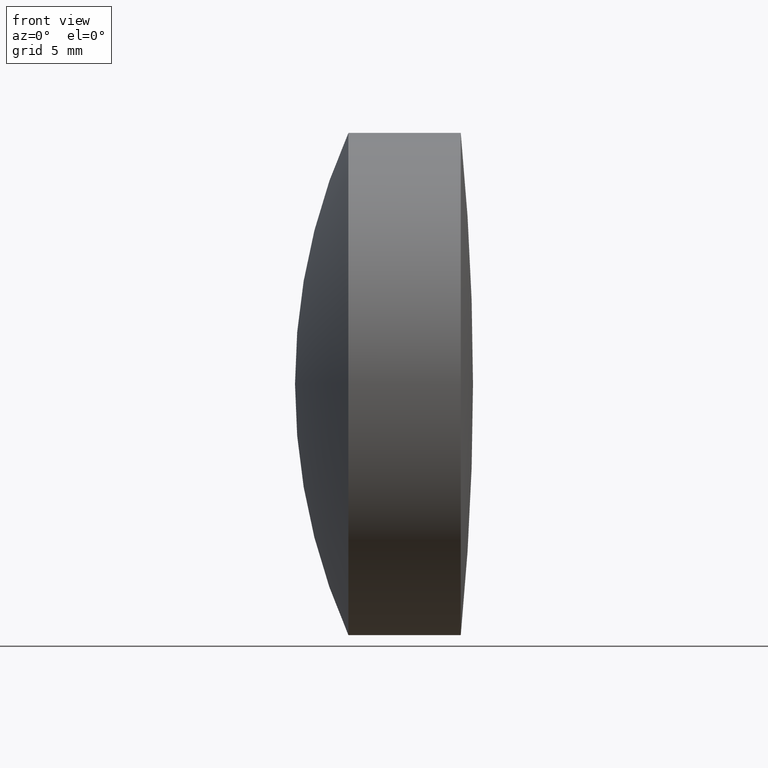
[diagram: clean part render]
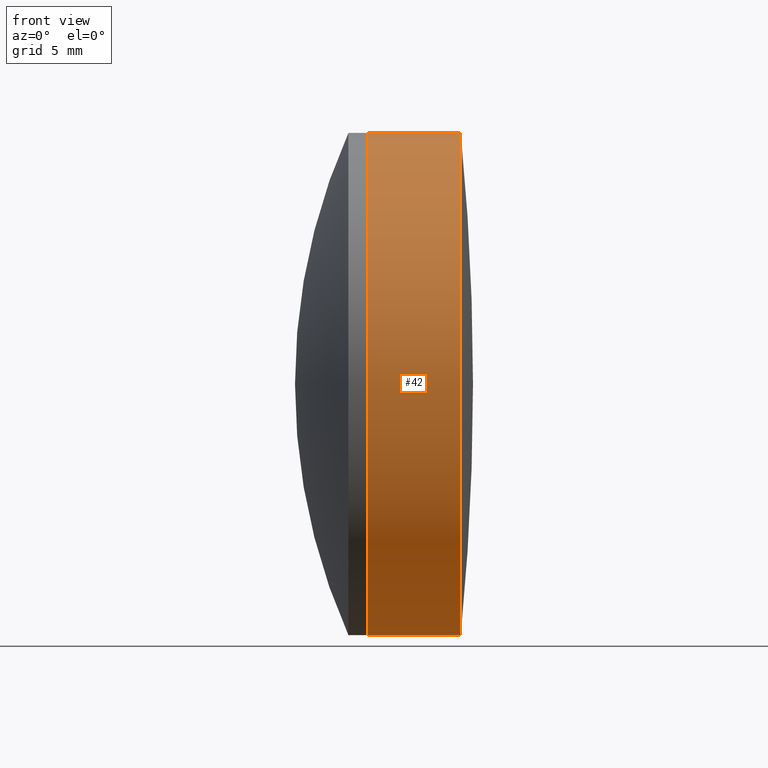
[diagram: same view with one face highlighted and labeled with its STEP entity id]
A machine part, front view. The second image highlights one B-rep face of the part: STEP entity #42.
In plain terms, the highlighted cylindrical surface (partial cylindrical patch) has radius 12.7 mm, axis along (-1, -0, -0).
Its self-contained STEP definition (entity closure, byte-faithful):
#3 = FACE_OUTER_BOUND ( 'NONE', #335, .T. ) ;
#6 = CARTESIAN_POINT ( 'NONE',  ( 233.6683955093282300, 0.0000000000000000000, 12.70000000000001700 ) ) ;
#12 = CIRCLE ( 'NONE', #99, 12.70000000000001700 ) ;
#27 = EDGE_CURVE ( 'NONE', #146, #310, #59, .T. ) ;
#29 = CARTESIAN_POINT ( 'NONE',  ( 238.3768828869102400, 0.0000000000000000000, 12.70000000000002100 ) ) ;
#38 = ORIENTED_EDGE ( 'NONE', *, *, #27, .T. ) ;
#39 = LINE ( 'NONE', #191, #87 ) ;
#42 = ADVANCED_FACE ( 'NONE', ( #3 ), #189, .T. ) ;
#47 = DIRECTION ( 'NONE',  ( -1.000000000000000000, -0.0000000000000000000, -0.0000000000000000000 ) ) ;
#59 = CIRCLE ( 'NONE', #255, 12.70000000000002100 ) ;
#64 = AXIS2_PLACEMENT_3D ( 'NONE', #317, #249, #188 ) ;
#73 = VECTOR ( 'NONE', #167, 1000.000000000000000 ) ;
#80 = ORIENTED_EDGE ( 'NONE', *, *, #269, .F. ) ;
#87 = VECTOR ( 'NONE', #228, 1000.000000000000000 ) ;
#99 = AXIS2_PLACEMENT_3D ( 'NONE', #261, #47, #102 ) ;
#102 = DIRECTION ( 'NONE',  ( 0.0000000000000000000, 0.0000000000000000000, 1.000000000000000000 ) ) ;
#107 = EDGE_CURVE ( 'NONE', #146, #166, #39, .T. ) ;
#113 = LINE ( 'NONE', #215, #73 ) ;
#121 = VERTEX_POINT ( 'NONE', #6 ) ;
#131 = EDGE_CURVE ( 'NONE', #310, #121, #113, .T. ) ;
#146 = VERTEX_POINT ( 'NONE', #181 ) ;
#160 = ORIENTED_EDGE ( 'NONE', *, *, #131, .T. ) ;
#166 = VERTEX_POINT ( 'NONE', #278 ) ;
#167 = DIRECTION ( 'NONE',  ( -1.000000000000000000, -0.0000000000000000000, -0.0000000000000000000 ) ) ;
#169 = CARTESIAN_POINT ( 'NONE',  ( 238.3768828869102400, 0.0000000000000000000, 0.0000000000000000000 ) ) ;
#181 = CARTESIAN_POINT ( 'NONE',  ( 238.3768828869102400, 1.555301434917141200E-015, -12.70000000000002200 ) ) ;
#188 = DIRECTION ( 'NONE',  ( 0.0000000000000000000, 0.0000000000000000000, 1.000000000000000000 ) ) ;
#189 = CYLINDRICAL_SURFACE ( 'NONE', #64, 12.70000000000001900 ) ;
#191 = CARTESIAN_POINT ( 'NONE',  ( -0.5519199926577972300, 1.555301434917140800E-015, -12.70000000000001900 ) ) ;
#194 = ORIENTED_EDGE ( 'NONE', *, *, #107, .F. ) ;
#206 = DIRECTION ( 'NONE',  ( 0.0000000000000000000, 0.0000000000000000000, 1.000000000000000000 ) ) ;
#215 = CARTESIAN_POINT ( 'NONE',  ( -0.5519199926577972300, 0.0000000000000000000, 12.70000000000001900 ) ) ;
#228 = DIRECTION ( 'NONE',  ( -1.000000000000000000, -0.0000000000000000000, -0.0000000000000000000 ) ) ;
#249 = DIRECTION ( 'NONE',  ( -1.000000000000000000, -0.0000000000000000000, -0.0000000000000000000 ) ) ;
#255 = AXIS2_PLACEMENT_3D ( 'NONE', #169, #343, #206 ) ;
#261 = CARTESIAN_POINT ( 'NONE',  ( 233.6683955093282300, 0.0000000000000000000, 0.0000000000000000000 ) ) ;
#269 = EDGE_CURVE ( 'NONE', #166, #121, #12, .T. ) ;
#278 = CARTESIAN_POINT ( 'NONE',  ( 233.6683955093282300, 1.555301434917140400E-015, -12.70000000000002100 ) ) ;
#310 = VERTEX_POINT ( 'NONE', #29 ) ;
#317 = CARTESIAN_POINT ( 'NONE',  ( -0.5519199926577972300, 0.0000000000000000000, 0.0000000000000000000 ) ) ;
#335 = EDGE_LOOP ( 'NONE', ( #194, #38, #160, #80 ) ) ;
#343 = DIRECTION ( 'NONE',  ( -1.000000000000000000, -0.0000000000000000000, -0.0000000000000000000 ) ) ;